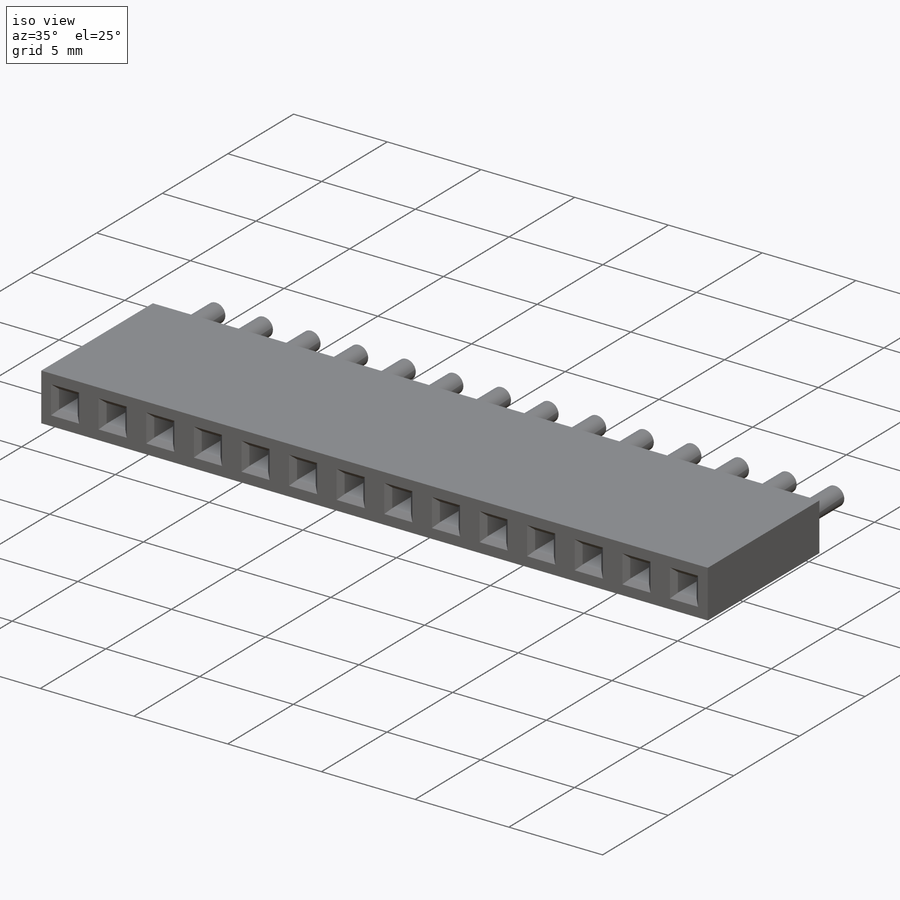
[diagram: iso view]
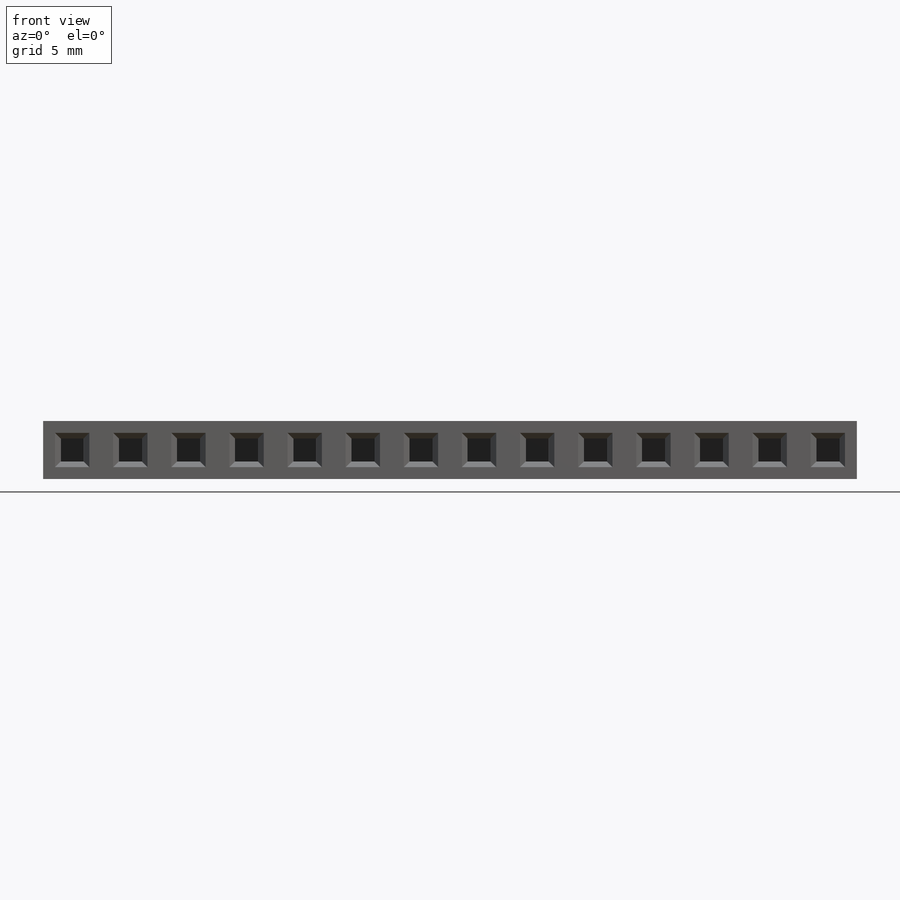
[diagram: front view]
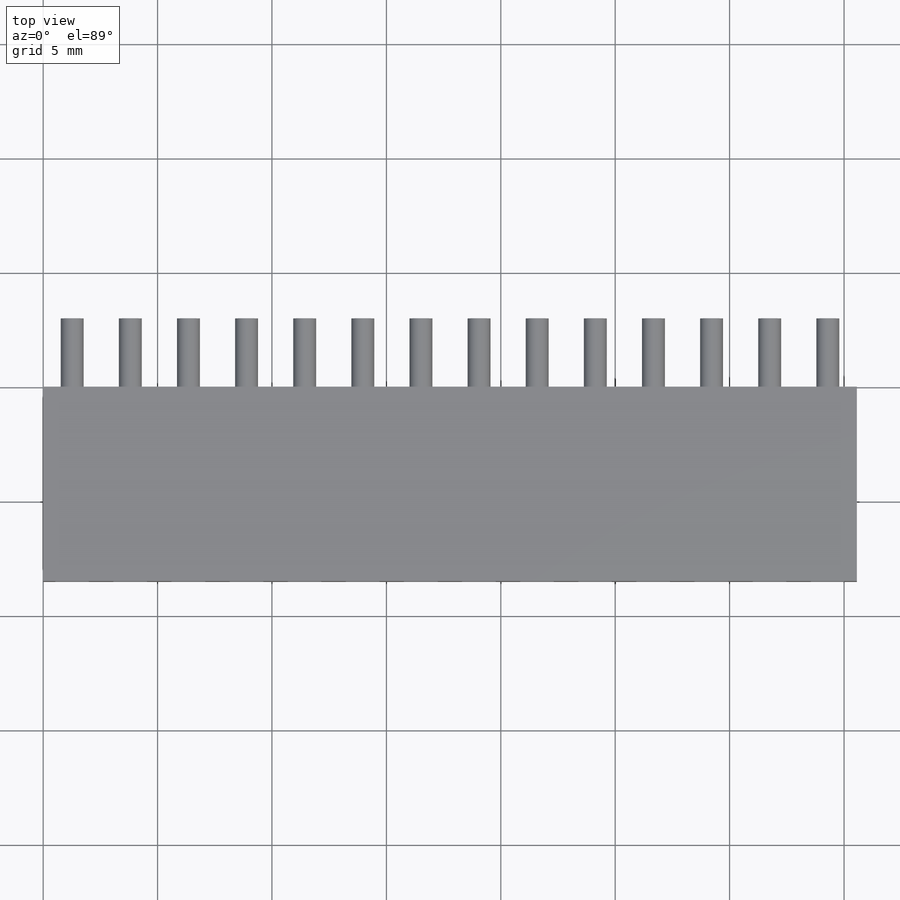
[diagram: top view]
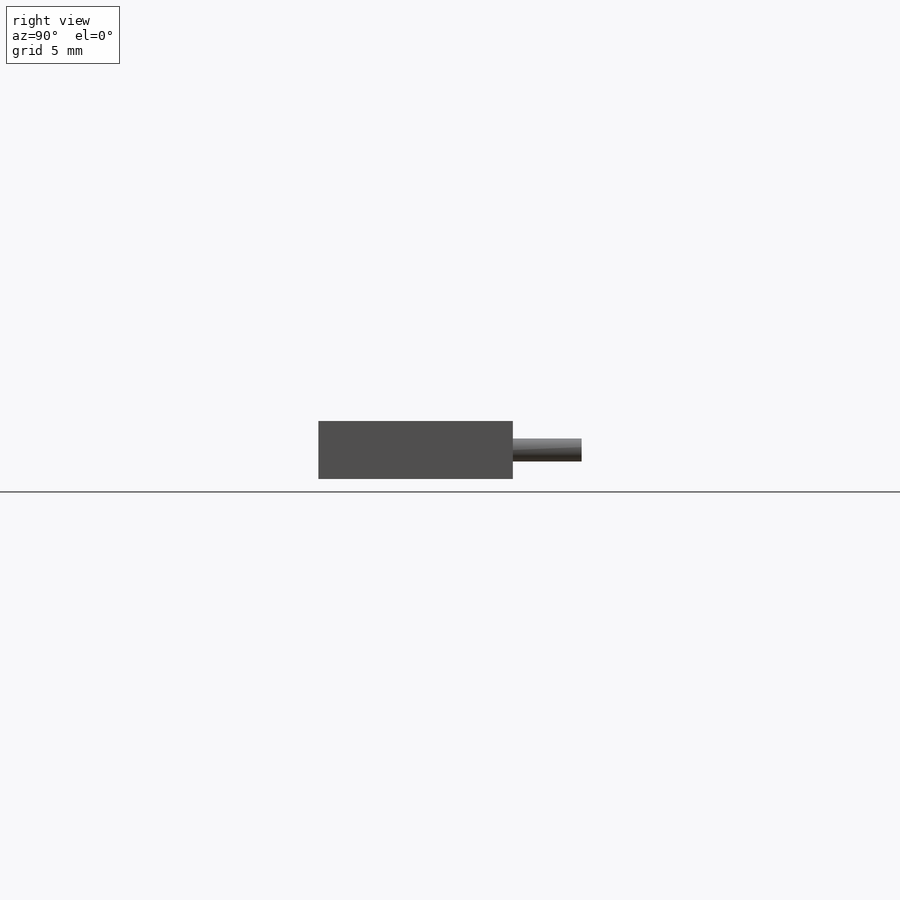
[diagram: right view]
SOLIDWORKS PART (.sldprt)
format: sldprt  version: not decoded by parser v0  size: 446,976 bytes
history: native  units: mm
features: sketch x3, extrude x2, pattern_linear x2, material x1, cut_extrude x1, chamfer x1 (+11 scaffold rows collapsed)
feature tree (21):
  scaffold x11  (default folders/planes/origin — collapsed)
  material  "Material <not specified>"
  sketch  "Sketch1"  dims[D1=2.54mm D2=35.56mm]
  extrude  "Boss-Extrude1"  Depth=8.5mm
  sketch  "Sketch2"  dims[D1=1.0mm D2=1.0mm D3=0.77mm D4=0.77mm]
  cut_extrude  "Cut-Extrude1"  Depth=8mm
  chamfer  "Chamfer1"  Distance=0.25mm Angle=45deg
  pattern_linear  "LPattern2"  Count1=14 Count2=1 Spacing1=2.54mm Spacing2=2.54mm
  sketch  "Sketch3"  dims[D1=1.0mm D2=1.27mm D3=1.27mm]
  extrude  "Boss-Extrude2"  Depth=3mm
  pattern_linear  "LPattern3"  Count1=14 Count2=1 Spacing1=2.54mm Spacing2=2.54mm
decode coverage: 9 of 9 modeling features carry decoded parameters
note: suppression state not decoded; provenance and decode notes live in map.json
